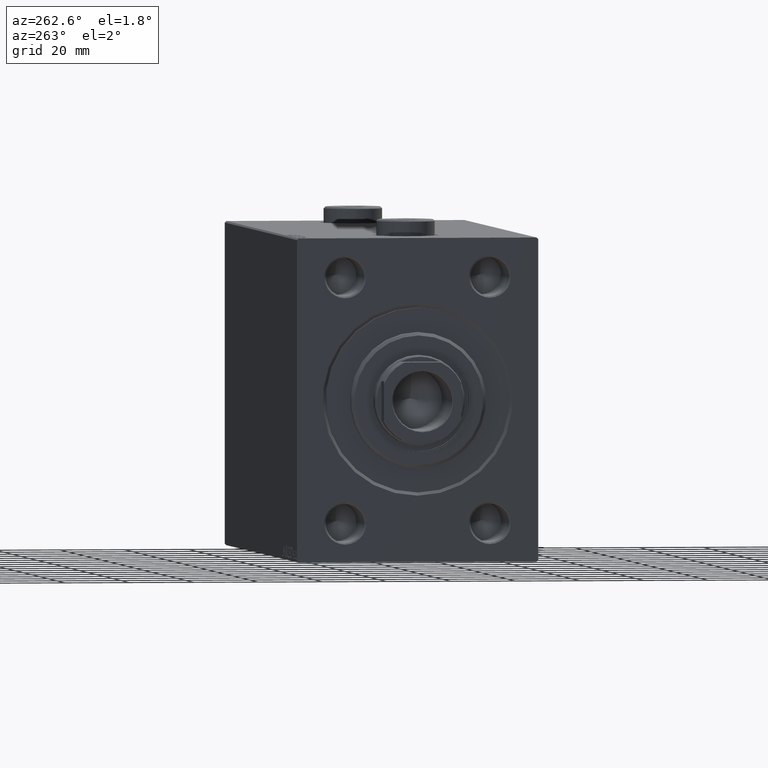
[diagram: clean part render]
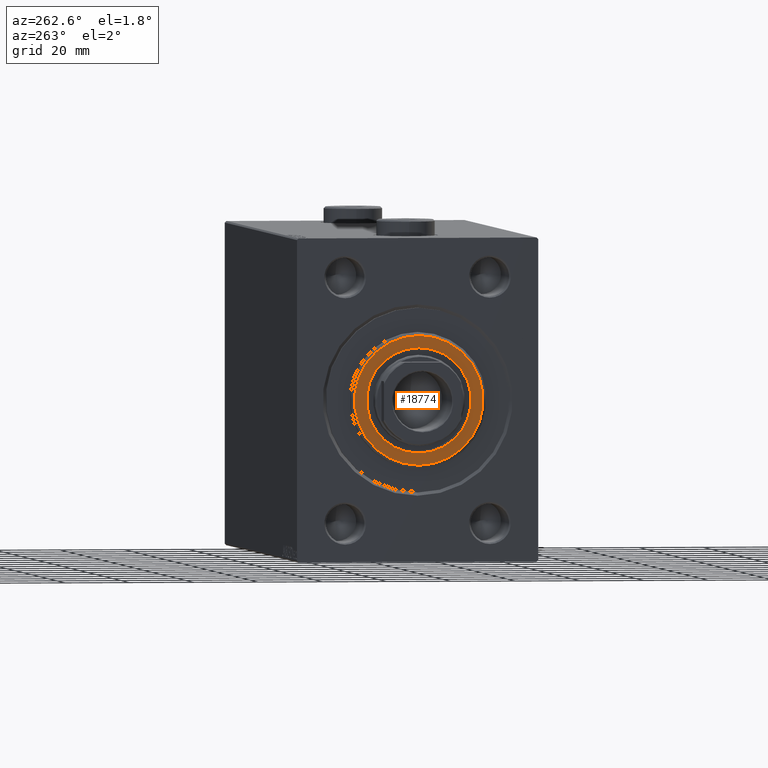
[diagram: same view with one face highlighted and labeled with its STEP entity id]
A machine part, auxiliary view. The second image highlights one B-rep face of the part: STEP entity #18774.
In plain terms, the highlighted planar face has unit normal (-1, 0, 0).
Its self-contained STEP definition (entity closure, byte-faithful):
#781 = AXIS2_PLACEMENT_3D ( 'NONE', #14013, #10328, #6181 ) ;
#2246 = FACE_OUTER_BOUND ( 'NONE', #22087, .T. ) ;
#4290 = VERTEX_POINT ( 'NONE', #31740 ) ;
#5913 = CIRCLE ( 'NONE', #781, 19.99999999999999645 ) ;
#5927 = EDGE_CURVE ( 'NONE', #23290, #4290, #6565, .T. ) ;
#6181 = DIRECTION ( 'NONE',  ( 0.000000000000000000, 0.000000000000000000, -1.000000000000000000 ) ) ;
#6565 = CIRCLE ( 'NONE', #36786, 16.25000000000000000 ) ;
#7057 = CARTESIAN_POINT ( 'NONE',  ( 3.000000000000000000, 0.000000000000000000, 19.99999999999999645 ) ) ;
#7582 = ORIENTED_EDGE ( 'NONE', *, *, #25449, .F. ) ;
#9412 = PLANE ( 'NONE',  #23319 ) ;
#9601 = DIRECTION ( 'NONE',  ( 1.000000000000000000, 0.000000000000000000, 0.000000000000000000 ) ) ;
#10281 = ORIENTED_EDGE ( 'NONE', *, *, #34177, .T. ) ;
#10328 = DIRECTION ( 'NONE',  ( 1.000000000000000000, -0.000000000000000000, 0.000000000000000000 ) ) ;
#10861 = CIRCLE ( 'NONE', #39631, 19.99999999999999645 ) ;
#13300 = CARTESIAN_POINT ( 'NONE',  ( 3.000000000000000000, 0.000000000000000000, 0.000000000000000000 ) ) ;
#13688 = CARTESIAN_POINT ( 'NONE',  ( 3.000000000000000000, 2.510525938252074087E-15, -19.99999999999999645 ) ) ;
#13977 = CARTESIAN_POINT ( 'NONE',  ( 3.000000000000000000, 1.990051048614449313E-15, 16.25000000000000000 ) ) ;
#14013 = CARTESIAN_POINT ( 'NONE',  ( 3.000000000000000000, 0.000000000000000000, 0.000000000000000000 ) ) ;
#16314 = FACE_BOUND ( 'NONE', #40246, .T. ) ;
#16700 = VERTEX_POINT ( 'NONE', #7057 ) ;
#18601 = ORIENTED_EDGE ( 'NONE', *, *, #5927, .F. ) ;
#18774 = ADVANCED_FACE ( 'NONE', ( #2246, #16314 ), #9412, .T. ) ;
#21515 = EDGE_CURVE ( 'NONE', #23655, #16700, #10861, .T. ) ;
#22087 = EDGE_LOOP ( 'NONE', ( #10281, #38767 ) ) ;
#22984 = CARTESIAN_POINT ( 'NONE',  ( 3.000000000000000000, 0.000000000000000000, 0.000000000000000000 ) ) ;
#23240 = DIRECTION ( 'NONE',  ( 1.000000000000000000, 0.000000000000000000, 0.000000000000000000 ) ) ;
#23290 = VERTEX_POINT ( 'NONE', #13977 ) ;
#23319 = AXIS2_PLACEMENT_3D ( 'NONE', #29962, #34111, #30421 ) ;
#23655 = VERTEX_POINT ( 'NONE', #13688 ) ;
#25449 = EDGE_CURVE ( 'NONE', #4290, #23290, #44187, .T. ) ;
#26452 = DIRECTION ( 'NONE',  ( 0.000000000000000000, 0.000000000000000000, -1.000000000000000000 ) ) ;
#29962 = CARTESIAN_POINT ( 'NONE',  ( 3.000000000000000000, 0.000000000000000000, 0.000000000000000000 ) ) ;
#30421 = DIRECTION ( 'NONE',  ( 0.000000000000000000, 0.000000000000000000, -1.000000000000000000 ) ) ;
#31740 = CARTESIAN_POINT ( 'NONE',  ( 3.000000000000000000, 0.000000000000000000, -16.25000000000000000 ) ) ;
#34102 = DIRECTION ( 'NONE',  ( 0.000000000000000000, 0.000000000000000000, -1.000000000000000000 ) ) ;
#34111 = DIRECTION ( 'NONE',  ( 1.000000000000000000, -0.000000000000000000, 0.000000000000000000 ) ) ;
#34177 = EDGE_CURVE ( 'NONE', #16700, #23655, #5913, .T. ) ;
#35899 = CARTESIAN_POINT ( 'NONE',  ( 3.000000000000000000, 0.000000000000000000, 0.000000000000000000 ) ) ;
#36786 = AXIS2_PLACEMENT_3D ( 'NONE', #22984, #9601, #26452 ) ;
#38767 = ORIENTED_EDGE ( 'NONE', *, *, #21515, .T. ) ;
#39631 = AXIS2_PLACEMENT_3D ( 'NONE', #35899, #39825, #42852 ) ;
#39825 = DIRECTION ( 'NONE',  ( 1.000000000000000000, -0.000000000000000000, 0.000000000000000000 ) ) ;
#40246 = EDGE_LOOP ( 'NONE', ( #7582, #18601 ) ) ;
#42852 = DIRECTION ( 'NONE',  ( 0.000000000000000000, 0.000000000000000000, -1.000000000000000000 ) ) ;
#44187 = CIRCLE ( 'NONE', #45648, 16.25000000000000000 ) ;
#45648 = AXIS2_PLACEMENT_3D ( 'NONE', #13300, #23240, #34102 ) ;